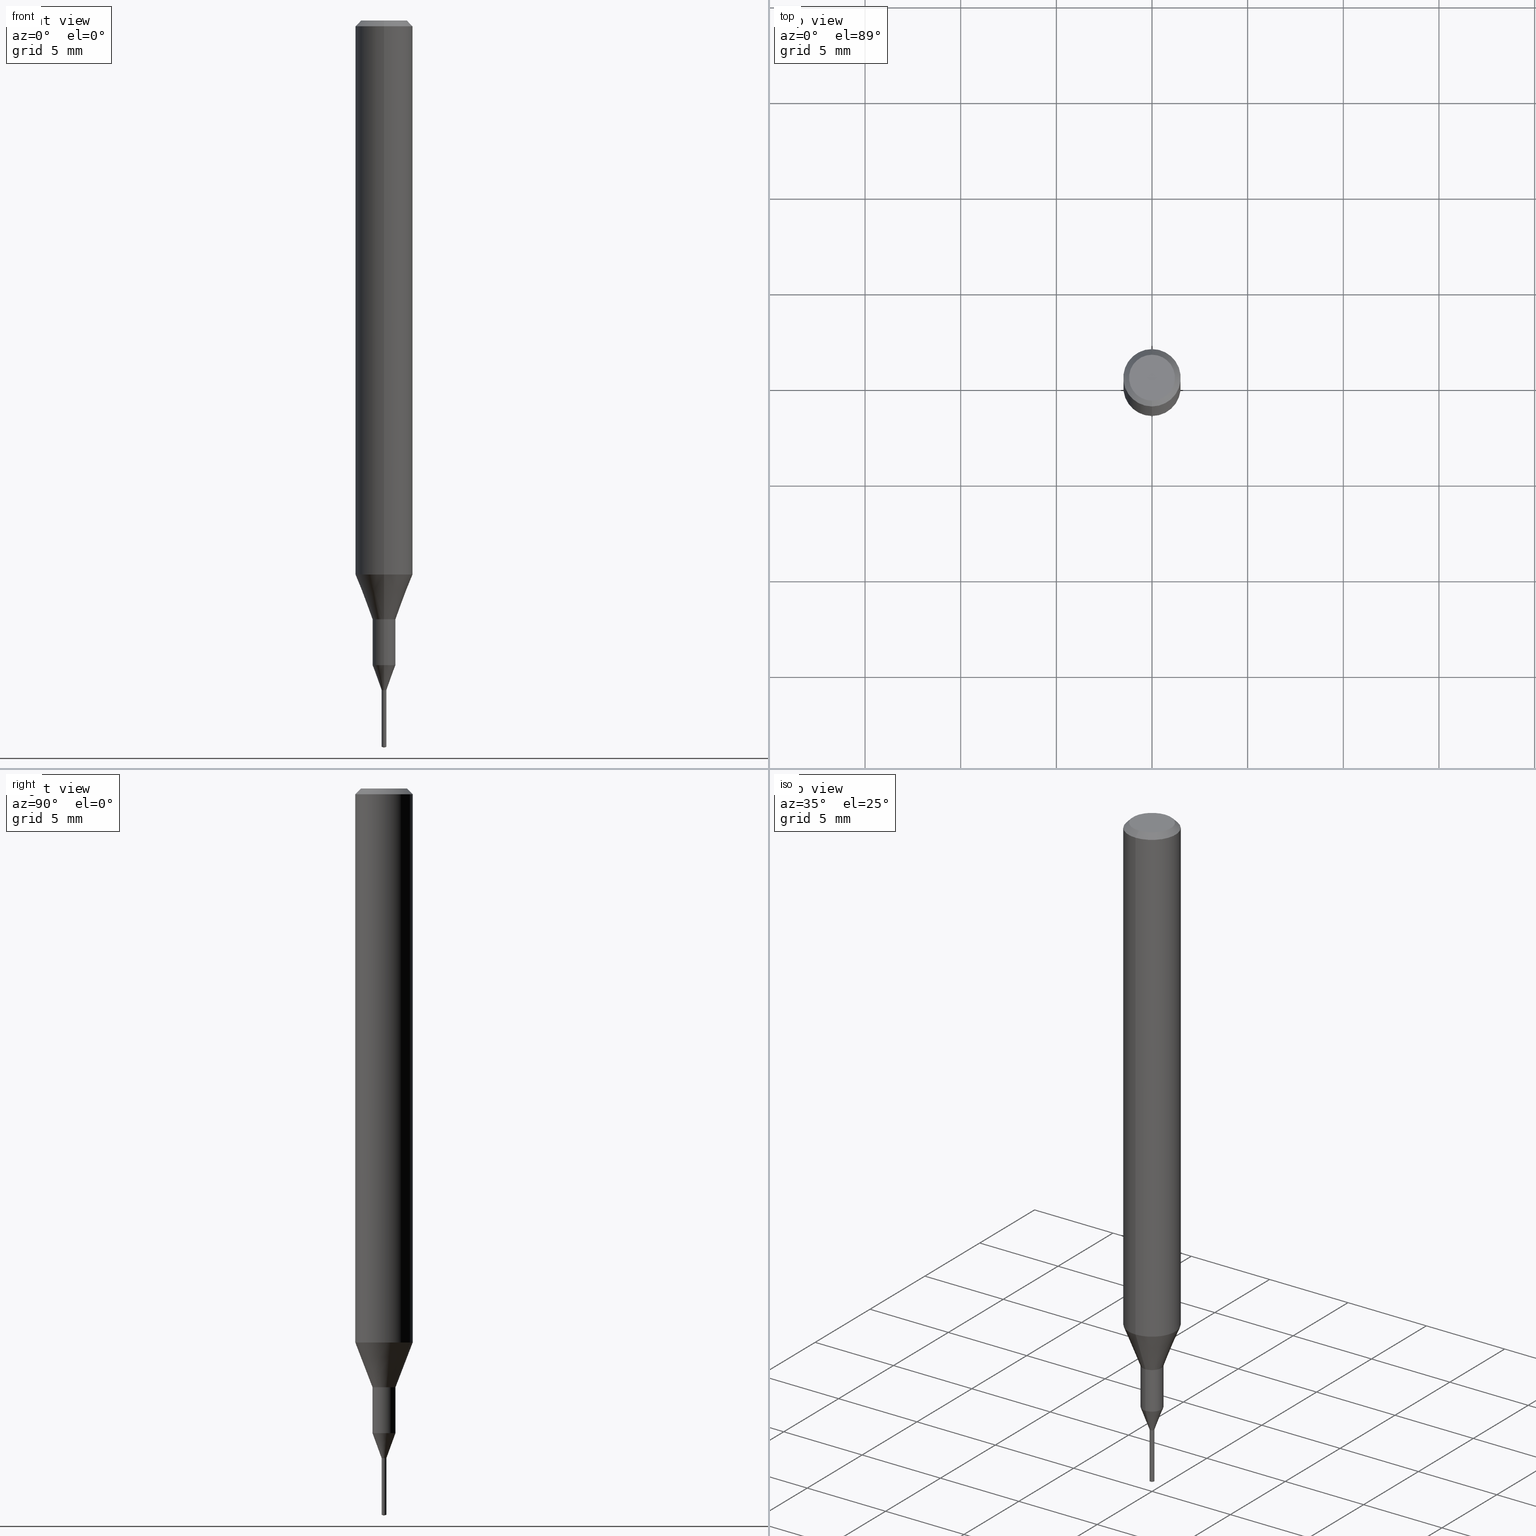
[diagram: canonical four-view strip — front | top / right | iso, engineering-drawing reading convention]
A machine part, canonical four-view strip (front | top / right | iso — engineering-drawing reading convention). The complete STEP part file that produces these views, byte-faithful:
ISO-10303-21;
HEADER;
FILE_DESCRIPTION(('no description'),'unknown implementation level');
FILE_NAME('C-UMD2025-030-Huellk.stp','  ',('CIMSOURCE GmbH'),('CADClick - KiM GmbH - www.kimweb.de'),'unknown preprocess','ACIS','unknown authorization');
FILE_SCHEMA(('automotive_design'));
ENDSEC;
DATA;
#1=MECHANICAL_DESIGN_GEOMETRIC_PRESENTATION_REPRESENTATION(' ',(#14,#15,#16,#17,#18,#19,#20,#21,#22,#23,#24,#25,#26,#27,#28,#29,#30,#31,#32,#33,#34,#35,#36,#37,#38,#39,#40,#41,#42,#43,#44,#45,#46,#47,#48,#49,#50,#51,#52,#53,#54,#55,#56,#57,#58,#59,#60,#61,#62,#63,#64,#65,#66,#67,#68,#69,#70,#71,#72,#73,#74,#75,#76,#77,#78,#79,#80,#81,#82,#83,#84,#85,#86,#87,#88,#89,#90,#91,#92),#10);
#2=PRODUCT_DEFINITION_CONTEXT('',#93,'design');
#3=APPLICATION_PROTOCOL_DEFINITION('INTERNATIONAL STANDARD','automotive_design',1994,#93);
#4=PRODUCT_CATEGORY_RELATIONSHIP('NONE','NONE',#94,#95);
#5=SHAPE_DEFINITION_REPRESENTATION(#96,#97);
#6=PRODUCT_DEFINITION_CONTEXT('',#98,'design');
#7=APPLICATION_PROTOCOL_DEFINITION('INTERNATIONAL STANDARD','automotive_design',1994,#98);
#8=PRODUCT_CATEGORY_RELATIONSHIP('NONE','NONE',#99,#100);
#9=SHAPE_DEFINITION_REPRESENTATION(#101,#102);
#10= (GEOMETRIC_REPRESENTATION_CONTEXT(3)GLOBAL_UNCERTAINTY_ASSIGNED_CONTEXT((#105))GLOBAL_UNIT_ASSIGNED_CONTEXT((#107,#108,#109))REPRESENTATION_CONTEXT('NONE','WORKSPACE'));
#14=STYLED_ITEM('',(#111),#112);
#15=STYLED_ITEM('',(#113),#114);
#16=STYLED_ITEM('',(#115),#116);
#17=STYLED_ITEM('',(#117),#118);
#18=STYLED_ITEM('',(#119),#120);
#19=STYLED_ITEM('',(#121),#122);
#20=STYLED_ITEM('',(#123),#124);
#21=STYLED_ITEM('',(#125),#126);
#22=STYLED_ITEM('',(#127),#128);
#23=STYLED_ITEM('',(#129),#130);
#24=STYLED_ITEM('',(#131),#132);
#25=STYLED_ITEM('',(#133),#134);
#26=STYLED_ITEM('',(#135),#136);
#27=STYLED_ITEM('',(#137),#138);
#28=STYLED_ITEM('',(#139),#140);
#29=STYLED_ITEM('',(#141),#142);
#30=STYLED_ITEM('',(#143),#144);
#31=STYLED_ITEM('',(#145),#146);
#32=STYLED_ITEM('',(#147),#148);
#33=STYLED_ITEM('',(#149),#150);
#34=STYLED_ITEM('',(#151),#152);
#35=STYLED_ITEM('',(#153),#154);
#36=STYLED_ITEM('',(#155),#156);
#37=STYLED_ITEM('',(#157),#158);
#38=STYLED_ITEM('',(#159),#160);
#39=STYLED_ITEM('',(#161),#162);
#40=STYLED_ITEM('',(#163),#164);
#41=STYLED_ITEM('',(#165),#166);
#42=STYLED_ITEM('',(#167),#168);
#43=STYLED_ITEM('',(#169),#170);
#44=STYLED_ITEM('',(#171),#172);
#45=STYLED_ITEM('',(#173),#174);
#46=STYLED_ITEM('',(#175),#176);
#47=STYLED_ITEM('',(#177),#178);
#48=STYLED_ITEM('',(#179),#180);
#49=STYLED_ITEM('',(#181),#182);
#50=STYLED_ITEM('',(#183),#184);
#51=STYLED_ITEM('',(#185),#186);
#52=STYLED_ITEM('',(#187),#188);
#53=STYLED_ITEM('',(#189),#190);
#54=STYLED_ITEM('',(#191),#192);
#55=STYLED_ITEM('',(#193),#194);
#56=STYLED_ITEM('',(#195),#196);
#57=STYLED_ITEM('',(#197),#198);
#58=STYLED_ITEM('',(#199),#200);
#59=STYLED_ITEM('',(#201),#202);
#60=STYLED_ITEM('',(#203),#204);
#61=STYLED_ITEM('',(#205),#206);
#62=STYLED_ITEM('',(#207),#208);
#63=STYLED_ITEM('',(#209),#210);
#64=STYLED_ITEM('',(#211),#212);
#65=STYLED_ITEM('',(#213),#214);
#66=STYLED_ITEM('',(#215),#216);
#67=STYLED_ITEM('',(#217),#218);
#68=STYLED_ITEM('',(#219),#220);
#69=STYLED_ITEM('',(#221),#222);
#70=STYLED_ITEM('',(#223),#224);
#71=STYLED_ITEM('',(#225),#226);
#72=STYLED_ITEM('',(#227),#228);
#73=STYLED_ITEM('',(#229),#230);
#74=STYLED_ITEM('',(#231),#232);
#75=STYLED_ITEM('',(#233),#234);
#76=STYLED_ITEM('',(#235),#236);
#77=STYLED_ITEM('',(#237),#238);
#78=STYLED_ITEM('',(#239),#240);
#79=STYLED_ITEM('',(#241),#242);
#80=STYLED_ITEM('',(#243),#244);
#81=STYLED_ITEM('',(#245),#246);
#82=STYLED_ITEM('',(#247),#248);
#83=STYLED_ITEM('',(#249),#250);
#84=STYLED_ITEM('',(#251),#252);
#85=STYLED_ITEM('',(#253),#254);
#86=STYLED_ITEM('',(#255),#256);
#87=STYLED_ITEM('',(#257),#258);
#88=STYLED_ITEM('',(#259),#260);
#89=STYLED_ITEM('',(#261),#262);
#90=STYLED_ITEM('',(#263),#264);
#91=STYLED_ITEM('',(#265),#266);
#92=STYLED_ITEM('',(#267),#268);
#93=APPLICATION_CONTEXT(' ');
#94=PRODUCT_CATEGORY('part','NONE');
#95=PRODUCT_RELATED_PRODUCT_CATEGORY('detail',' ',(#269));
#96=PRODUCT_DEFINITION_SHAPE('NONE','NONE',#270);
#97=ADVANCED_BREP_SHAPE_REPRESENTATION('1',(#242,#271),#10);
#98=APPLICATION_CONTEXT(' ');
#99=PRODUCT_CATEGORY('part','NONE');
#100=PRODUCT_RELATED_PRODUCT_CATEGORY('detail',' ',(#272));
#101=PRODUCT_DEFINITION_SHAPE('NONE','NONE',#273);
#102=ADVANCED_BREP_SHAPE_REPRESENTATION('2',(#150,#274),#10);
#105=UNCERTAINTY_MEASURE_WITH_UNIT(LENGTH_MEASURE(1.0E-006),#107,'','');
#107= (CONVERSION_BASED_UNIT('MILLIMETRE',#277)LENGTH_UNIT()NAMED_UNIT(#280));
#108= (NAMED_UNIT(#282)PLANE_ANGLE_UNIT()SI_UNIT($,.RADIAN.));
#109= (NAMED_UNIT(#282)SOLID_ANGLE_UNIT()SI_UNIT($,.STERADIAN.));
#111=PRESENTATION_STYLE_ASSIGNMENT((#288));
#112=VERTEX_POINT('',#289);
#113=PRESENTATION_STYLE_ASSIGNMENT((#290));
#114=EDGE_CURVE('',#212,#174,#291,.T.);
#115=PRESENTATION_STYLE_ASSIGNMENT((#292));
#116=ADVANCED_FACE('',(#293),#294,.T.);
#117=PRESENTATION_STYLE_ASSIGNMENT((#295));
#118=ADVANCED_FACE('',(#296),#297,.T.);
#119=PRESENTATION_STYLE_ASSIGNMENT((#298));
#120=EDGE_CURVE('',#252,#190,#299,.T.);
#121=PRESENTATION_STYLE_ASSIGNMENT((#300));
#122=ADVANCED_FACE('',(#301),#302,.T.);
#123=PRESENTATION_STYLE_ASSIGNMENT((#303));
#124=ADVANCED_FACE('',(#304),#305,.T.);
#125=PRESENTATION_STYLE_ASSIGNMENT((#306));
#126=EDGE_CURVE('',#248,#152,#307,.T.);
#127=PRESENTATION_STYLE_ASSIGNMENT((#308));
#128=EDGE_CURVE('',#192,#202,#309,.T.);
#129=PRESENTATION_STYLE_ASSIGNMENT((#310));
#130=EDGE_CURVE('',#190,#252,#311,.T.);
#131=PRESENTATION_STYLE_ASSIGNMENT((#312));
#132=EDGE_CURVE('',#160,#174,#313,.T.);
#133=PRESENTATION_STYLE_ASSIGNMENT((#314));
#134=EDGE_CURVE('',#158,#152,#315,.T.);
#135=PRESENTATION_STYLE_ASSIGNMENT((#316));
#136=VERTEX_POINT('',#317);
#137=PRESENTATION_STYLE_ASSIGNMENT((#318));
#138=EDGE_CURVE('',#160,#248,#319,.T.);
#139=PRESENTATION_STYLE_ASSIGNMENT((#320));
#140=EDGE_CURVE('',#164,#112,#321,.T.);
#141=PRESENTATION_STYLE_ASSIGNMENT((#322));
#142=EDGE_CURVE('',#252,#202,#323,.T.);
#143=PRESENTATION_STYLE_ASSIGNMENT((#324));
#144=EDGE_CURVE('',#212,#248,#325,.T.);
#145=PRESENTATION_STYLE_ASSIGNMENT((#326));
#146=EDGE_CURVE('',#202,#192,#327,.T.);
#147=PRESENTATION_STYLE_ASSIGNMENT((#328));
#148=VERTEX_POINT('',#329);
#149=PRESENTATION_STYLE_ASSIGNMENT((#330));
#150=MANIFOLD_SOLID_BREP('2',#331);
#151=PRESENTATION_STYLE_ASSIGNMENT((#332));
#152=VERTEX_POINT('',#333);
#153=PRESENTATION_STYLE_ASSIGNMENT((#334));
#154=EDGE_CURVE('',#186,#176,#335,.T.);
#155=PRESENTATION_STYLE_ASSIGNMENT((#336));
#156=EDGE_CURVE('',#174,#160,#337,.T.);
#157=PRESENTATION_STYLE_ASSIGNMENT((#338));
#158=VERTEX_POINT('',#339);
#159=PRESENTATION_STYLE_ASSIGNMENT((#340));
#160=VERTEX_POINT('',#341);
#161=PRESENTATION_STYLE_ASSIGNMENT((#342));
#162=ADVANCED_FACE('',(#343),#344,.T.);
#163=PRESENTATION_STYLE_ASSIGNMENT((#345));
#164=VERTEX_POINT('',#346);
#165=PRESENTATION_STYLE_ASSIGNMENT((#347));
#166=EDGE_CURVE('',#210,#214,#348,.T.);
#167=PRESENTATION_STYLE_ASSIGNMENT((#349));
#168=ADVANCED_FACE('',(#350),#351,.T.);
#169=PRESENTATION_STYLE_ASSIGNMENT((#352));
#170=EDGE_CURVE('',#136,#176,#353,.T.);
#171=PRESENTATION_STYLE_ASSIGNMENT((#354));
#172=ADVANCED_FACE('',(#355),#356,.T.);
#173=PRESENTATION_STYLE_ASSIGNMENT((#357));
#174=VERTEX_POINT('',#358);
#175=PRESENTATION_STYLE_ASSIGNMENT((#359));
#176=VERTEX_POINT('',#360);
#177=PRESENTATION_STYLE_ASSIGNMENT((#361));
#178=ADVANCED_FACE('',(#362),#363,.T.);
#179=PRESENTATION_STYLE_ASSIGNMENT((#364));
#180=EDGE_CURVE('',#246,#192,#365,.T.);
#181=PRESENTATION_STYLE_ASSIGNMENT((#366));
#182=EDGE_CURVE('',#234,#246,#367,.T.);
#183=PRESENTATION_STYLE_ASSIGNMENT((#368));
#184=ADVANCED_FACE('',(#369),#370,.T.);
#185=PRESENTATION_STYLE_ASSIGNMENT((#371));
#186=VERTEX_POINT('',#372);
#187=PRESENTATION_STYLE_ASSIGNMENT((#373));
#188=EDGE_CURVE('',#148,#186,#374,.T.);
#189=PRESENTATION_STYLE_ASSIGNMENT((#375));
#190=VERTEX_POINT('',#376);
#191=PRESENTATION_STYLE_ASSIGNMENT((#377));
#192=VERTEX_POINT('',#378);
#193=PRESENTATION_STYLE_ASSIGNMENT((#379));
#194=EDGE_CURVE('',#158,#212,#380,.T.);
#195=PRESENTATION_STYLE_ASSIGNMENT((#381));
#196=ADVANCED_FACE('',(#382),#383,.T.);
#197=PRESENTATION_STYLE_ASSIGNMENT((#384));
#198=EDGE_CURVE('',#246,#234,#385,.T.);
#199=PRESENTATION_STYLE_ASSIGNMENT((#386));
#200=EDGE_CURVE('',#192,#190,#387,.T.);
#201=PRESENTATION_STYLE_ASSIGNMENT((#388));
#202=VERTEX_POINT('',#389);
#203=PRESENTATION_STYLE_ASSIGNMENT((#390));
#204=EDGE_CURVE('',#214,#136,#391,.T.);
#205=PRESENTATION_STYLE_ASSIGNMENT((#392));
#206=EDGE_CURVE('',#112,#246,#393,.T.);
#207=PRESENTATION_STYLE_ASSIGNMENT((#394));
#208=EDGE_CURVE('',#186,#148,#395,.T.);
#209=PRESENTATION_STYLE_ASSIGNMENT((#396));
#210=VERTEX_POINT('',#397);
#211=PRESENTATION_STYLE_ASSIGNMENT((#398));
#212=VERTEX_POINT('',#399);
#213=PRESENTATION_STYLE_ASSIGNMENT((#400));
#214=VERTEX_POINT('',#401);
#215=PRESENTATION_STYLE_ASSIGNMENT((#402));
#216=EDGE_CURVE('',#234,#164,#403,.T.);
#217=PRESENTATION_STYLE_ASSIGNMENT((#404));
#218=ADVANCED_FACE('',(#405),#406,.T.);
#219=PRESENTATION_STYLE_ASSIGNMENT((#407));
#220=EDGE_CURVE('',#152,#158,#408,.T.);
#221=PRESENTATION_STYLE_ASSIGNMENT((#409));
#222=ADVANCED_FACE('',(#410),#411,.T.);
#223=PRESENTATION_STYLE_ASSIGNMENT((#412));
#224=EDGE_CURVE('',#176,#210,#413,.T.);
#225=PRESENTATION_STYLE_ASSIGNMENT((#414));
#226=EDGE_CURVE('',#176,#136,#415,.T.);
#227=PRESENTATION_STYLE_ASSIGNMENT((#416));
#228=ADVANCED_FACE('',(#417,#418),#419,.T.);
#229=PRESENTATION_STYLE_ASSIGNMENT((#420));
#230=VERTEX_POINT('',#421);
#231=PRESENTATION_STYLE_ASSIGNMENT((#422));
#232=EDGE_CURVE('',#136,#148,#423,.T.);
#233=PRESENTATION_STYLE_ASSIGNMENT((#424));
#234=VERTEX_POINT('',#425);
#235=PRESENTATION_STYLE_ASSIGNMENT((#426));
#236=ADVANCED_FACE('',(#427),#428,.T.);
#237=PRESENTATION_STYLE_ASSIGNMENT((#429));
#238=ADVANCED_FACE('',(#430),#431,.T.);
#239=PRESENTATION_STYLE_ASSIGNMENT((#432));
#240=EDGE_CURVE('',#202,#234,#433,.T.);
#241=PRESENTATION_STYLE_ASSIGNMENT((#434));
#242=MANIFOLD_SOLID_BREP('1',#435);
#243=PRESENTATION_STYLE_ASSIGNMENT((#436));
#244=EDGE_CURVE('',#214,#210,#437,.T.);
#245=PRESENTATION_STYLE_ASSIGNMENT((#438));
#246=VERTEX_POINT('',#439);
#247=PRESENTATION_STYLE_ASSIGNMENT((#440));
#248=VERTEX_POINT('',#441);
#249=PRESENTATION_STYLE_ASSIGNMENT((#442));
#250=ADVANCED_FACE('',(#443),#444,.T.);
#251=PRESENTATION_STYLE_ASSIGNMENT((#445));
#252=VERTEX_POINT('',#446);
#253=PRESENTATION_STYLE_ASSIGNMENT((#447));
#254=EDGE_CURVE('',#112,#164,#448,.T.);
#255=PRESENTATION_STYLE_ASSIGNMENT((#449));
#256=EDGE_CURVE('',#230,#160,#450,.T.);
#257=PRESENTATION_STYLE_ASSIGNMENT((#451));
#258=ADVANCED_FACE('',(#452),#453,.T.);
#259=PRESENTATION_STYLE_ASSIGNMENT((#454));
#260=ADVANCED_FACE('',(#455),#456,.T.);
#261=PRESENTATION_STYLE_ASSIGNMENT((#457));
#262=ADVANCED_FACE('',(#458),#459,.T.);
#263=PRESENTATION_STYLE_ASSIGNMENT((#460));
#264=ADVANCED_FACE('',(#461),#462,.T.);
#265=PRESENTATION_STYLE_ASSIGNMENT((#463));
#266=EDGE_CURVE('',#248,#212,#464,.T.);
#267=PRESENTATION_STYLE_ASSIGNMENT((#465));
#268=EDGE_CURVE('',#174,#230,#466,.T.);
#269=PRODUCT('1','1','PART-1-DESC',(#467));
#270=PRODUCT_DEFINITION('NONE','NONE',#468,#2);
#271=AXIS2_PLACEMENT_3D('',#469,#470,#471);
#272=PRODUCT('2','2','PART-2-DESC',(#472));
#273=PRODUCT_DEFINITION('NONE','NONE',#473,#6);
#274=AXIS2_PLACEMENT_3D('',#474,#475,#476);
#277=LENGTH_MEASURE_WITH_UNIT(LENGTH_MEASURE(1.0),#477);
#280=DIMENSIONAL_EXPONENTS(1.0,0.0,0.0,0.0,0.0,0.0,0.0);
#282=DIMENSIONAL_EXPONENTS(0.0,0.0,0.0,0.0,0.0,0.0,0.0);
#288=POINT_STYLE(' ',#478,POSITIVE_LENGTH_MEASURE(1.0E-006),#479);
#289=CARTESIAN_POINT('',(0.0,1.2,0.0));
#290=CURVE_STYLE('',#480,POSITIVE_LENGTH_MEASURE(1.0E-006),#481);
#291=LINE('',#482,#483);
#292=SURFACE_STYLE_USAGE(.BOTH.,#484);
#293=FACE_OUTER_BOUND('',#485,.T.);
#294=CONICAL_SURFACE('',#486,1.05,0.366459241971866);
#295=SURFACE_STYLE_USAGE(.BOTH.,#487);
#296=FACE_OUTER_BOUND('',#488,.T.);
#297=CONICAL_SURFACE('',#489,1.35,0.785398163397447);
#298=CURVE_STYLE('',#490,POSITIVE_LENGTH_MEASURE(1.0E-006),#491);
#299=CIRCLE('',#492,0.6);
#300=SURFACE_STYLE_USAGE(.BOTH.,#493);
#301=FACE_OUTER_BOUND('',#494,.T.);
#302=CONICAL_SURFACE('',#495,0.362493197318008,0.34904476886486);
#303=SURFACE_STYLE_USAGE(.BOTH.,#496);
#304=FACE_OUTER_BOUND('',#497,.T.);
#305=CONICAL_SURFACE('',#498,0.0625,1.30899693193389);
#306=CURVE_STYLE('',#499,POSITIVE_LENGTH_MEASURE(1.0E-006),#500);
#307=LINE('',#501,#502);
#308=CURVE_STYLE('',#503,POSITIVE_LENGTH_MEASURE(1.0E-006),#504);
#309=CIRCLE('',#505,1.5);
#310=CURVE_STYLE('',#506,POSITIVE_LENGTH_MEASURE(1.0E-006),#507);
#311=CIRCLE('',#508,0.6);
#312=CURVE_STYLE('',#509,POSITIVE_LENGTH_MEASURE(1.0E-006),#510);
#313=CIRCLE('',#511,0.125);
#314=CURVE_STYLE('',#512,POSITIVE_LENGTH_MEASURE(1.0E-006),#513);
#315=CIRCLE('',#514,0.126036398467433);
#316=POINT_STYLE(' ',#515,POSITIVE_LENGTH_MEASURE(1.0E-006),#516);
#317=CARTESIAN_POINT('',(0.0,0.59995,-33.695));
#318=CURVE_STYLE('',#517,POSITIVE_LENGTH_MEASURE(1.0E-006),#518);
#319=LINE('',#519,#520);
#320=CURVE_STYLE('',#521,POSITIVE_LENGTH_MEASURE(1.0E-006),#522);
#321=CIRCLE('',#523,1.2);
#322=CURVE_STYLE('',#524,POSITIVE_LENGTH_MEASURE(1.0E-006),#525);
#323=LINE('',#526,#527);
#324=CURVE_STYLE('',#528,POSITIVE_LENGTH_MEASURE(1.0E-006),#529);
#325=CIRCLE('',#530,0.125);
#326=CURVE_STYLE('',#531,POSITIVE_LENGTH_MEASURE(1.0E-006),#532);
#327=CIRCLE('',#533,1.5);
#328=POINT_STYLE(' ',#534,POSITIVE_LENGTH_MEASURE(1.0E-006),#535);
#329=CARTESIAN_POINT('',(0.0,0.125036394636015,-34.9999));
#330=SURFACE_STYLE_USAGE(.BOTH.,#536);
#331=CLOSED_SHELL('',(#124,#172,#262,#218,#184,#238,#260));
#332=POINT_STYLE(' ',#537,POSITIVE_LENGTH_MEASURE(1.0E-006),#538);
#333=CARTESIAN_POINT('',(0.126036398467433,1.54344974376107E-017,-34.9999));
#334=CURVE_STYLE('',#539,POSITIVE_LENGTH_MEASURE(1.0E-006),#540);
#335=LINE('',#541,#542);
#336=CURVE_STYLE('',#543,POSITIVE_LENGTH_MEASURE(1.0E-006),#544);
#337=CIRCLE('',#545,0.125);
#338=POINT_STYLE(' ',#546,POSITIVE_LENGTH_MEASURE(1.0E-006),#547);
#339=CARTESIAN_POINT('',(-0.126036398467433,0.0,-34.9999));
#340=POINT_STYLE(' ',#548,POSITIVE_LENGTH_MEASURE(1.0E-006),#549);
#341=CARTESIAN_POINT('',(0.125,1.53075794227797E-017,-37.96650635));
#342=SURFACE_STYLE_USAGE(.BOTH.,#550);
#343=FACE_OUTER_BOUND('',#551,.T.);
#344=CYLINDRICAL_SURFACE('',#552,0.59995);
#345=POINT_STYLE(' ',#553,POSITIVE_LENGTH_MEASURE(1.0E-006),#554);
#346=CARTESIAN_POINT('',(1.46952762458685E-016,-1.2,0.0));
#347=CURVE_STYLE('',#555,POSITIVE_LENGTH_MEASURE(1.0E-006),#556);
#348=CIRCLE('',#557,0.59995);
#349=SURFACE_STYLE_USAGE(.BOTH.,#558);
#350=FACE_OUTER_BOUND('',#559,.T.);
#351=CYLINDRICAL_SURFACE('',#560,1.5);
#352=CURVE_STYLE('',#561,POSITIVE_LENGTH_MEASURE(1.0E-006),#562);
#353=CIRCLE('',#563,0.59995);
#354=SURFACE_STYLE_USAGE(.BOTH.,#564);
#355=FACE_OUTER_BOUND('',#565,.T.);
#356=CYLINDRICAL_SURFACE('',#566,0.125);
#357=POINT_STYLE(' ',#567,POSITIVE_LENGTH_MEASURE(1.0E-006),#568);
#358=CARTESIAN_POINT('',(-0.125,0.0,-37.96650635));
#359=POINT_STYLE(' ',#569,POSITIVE_LENGTH_MEASURE(1.0E-006),#570);
#360=CARTESIAN_POINT('',(7.34702581975735E-017,-0.59995,-33.695));
#361=SURFACE_STYLE_USAGE(.BOTH.,#571);
#362=FACE_OUTER_BOUND('',#572,.T.);
#363=PLANE('',#573);
#364=CURVE_STYLE('',#574,POSITIVE_LENGTH_MEASURE(1.0E-006),#575);
#365=LINE('',#576,#577);
#366=CURVE_STYLE('',#578,POSITIVE_LENGTH_MEASURE(1.0E-006),#579);
#367=CIRCLE('',#580,1.5);
#368=SURFACE_STYLE_USAGE(.BOTH.,#581);
#369=FACE_OUTER_BOUND('',#582,.T.);
#370=CONICAL_SURFACE('',#583,0.125518199233716,1.47460611218056);
#371=POINT_STYLE(' ',#584,POSITIVE_LENGTH_MEASURE(1.0E-006),#585);
#372=CARTESIAN_POINT('',(1.53120363330306E-017,-0.125036394636015,-34.9999));
#373=CURVE_STYLE('',#586,POSITIVE_LENGTH_MEASURE(1.0E-006),#587);
#374=CIRCLE('',#588,0.125036394636015);
#375=POINT_STYLE(' ',#589,POSITIVE_LENGTH_MEASURE(1.0E-006),#590);
#376=CARTESIAN_POINT('',(0.0,0.6,-31.3));
#377=POINT_STYLE(' ',#591,POSITIVE_LENGTH_MEASURE(1.0E-006),#592);
#378=CARTESIAN_POINT('',(0.0,1.5,-28.955));
#379=CURVE_STYLE('',#593,POSITIVE_LENGTH_MEASURE(1.0E-006),#594);
#380=LINE('',#595,#596);
#381=SURFACE_STYLE_USAGE(.BOTH.,#597);
#382=FACE_OUTER_BOUND('',#598,.T.);
#383=CYLINDRICAL_SURFACE('',#599,0.59995);
#384=CURVE_STYLE('',#600,POSITIVE_LENGTH_MEASURE(1.0E-006),#601);
#385=CIRCLE('',#602,1.5);
#386=CURVE_STYLE('',#603,POSITIVE_LENGTH_MEASURE(1.0E-006),#604);
#387=LINE('',#605,#606);
#388=POINT_STYLE(' ',#607,POSITIVE_LENGTH_MEASURE(1.0E-006),#608);
#389=CARTESIAN_POINT('',(1.83690953073357E-016,-1.5,-28.955));
#390=CURVE_STYLE('',#609,POSITIVE_LENGTH_MEASURE(1.0E-006),#610);
#391=LINE('',#611,#612);
#392=CURVE_STYLE('',#613,POSITIVE_LENGTH_MEASURE(1.0E-006),#614);
#393=LINE('',#615,#616);
#394=CURVE_STYLE('',#617,POSITIVE_LENGTH_MEASURE(1.0E-006),#618);
#395=CIRCLE('',#619,0.125036394636015);
#396=POINT_STYLE(' ',#620,POSITIVE_LENGTH_MEASURE(1.0E-006),#621);
#397=CARTESIAN_POINT('',(7.34702581975735E-017,-0.59995,-31.3));
#398=POINT_STYLE(' ',#622,POSITIVE_LENGTH_MEASURE(1.0E-006),#623);
#399=CARTESIAN_POINT('',(-0.125,0.0,-35.0));
#400=POINT_STYLE(' ',#624,POSITIVE_LENGTH_MEASURE(1.0E-006),#625);
#401=CARTESIAN_POINT('',(0.0,0.59995,-31.3));
#402=CURVE_STYLE('',#626,POSITIVE_LENGTH_MEASURE(1.0E-006),#627);
#403=LINE('',#628,#629);
#404=SURFACE_STYLE_USAGE(.BOTH.,#630);
#405=FACE_OUTER_BOUND('',#631,.T.);
#406=PLANE('',#632);
#407=CURVE_STYLE('',#633,POSITIVE_LENGTH_MEASURE(1.0E-006),#634);
#408=CIRCLE('',#635,0.126036398467433);
#409=SURFACE_STYLE_USAGE(.BOTH.,#636);
#410=FACE_OUTER_BOUND('',#637,.T.);
#411=CONICAL_SURFACE('',#638,0.362493197318008,0.34904476886486);
#412=CURVE_STYLE('',#639,POSITIVE_LENGTH_MEASURE(1.0E-006),#640);
#413=LINE('',#641,#642);
#414=CURVE_STYLE('',#643,POSITIVE_LENGTH_MEASURE(1.0E-006),#644);
#415=CIRCLE('',#645,0.59995);
#416=SURFACE_STYLE_USAGE(.BOTH.,#646);
#417=FACE_BOUND('',#647,.T.);
#418=FACE_OUTER_BOUND('',#648,.T.);
#419=PLANE('',#649);
#420=POINT_STYLE(' ',#650,POSITIVE_LENGTH_MEASURE(1.0E-006),#651);
#421=CARTESIAN_POINT('',(0.0,0.0,-38.0));
#422=CURVE_STYLE('',#652,POSITIVE_LENGTH_MEASURE(1.0E-006),#653);
#423=LINE('',#654,#655);
#424=POINT_STYLE(' ',#656,POSITIVE_LENGTH_MEASURE(1.0E-006),#657);
#425=CARTESIAN_POINT('',(1.83690953073357E-016,-1.5,-0.300000000000001));
#426=SURFACE_STYLE_USAGE(.BOTH.,#658);
#427=FACE_OUTER_BOUND('',#659,.T.);
#428=PLANE('',#660);
#429=SURFACE_STYLE_USAGE(.BOTH.,#661);
#430=FACE_OUTER_BOUND('',#662,.T.);
#431=CYLINDRICAL_SURFACE('',#663,0.125);
#432=CURVE_STYLE('',#664,POSITIVE_LENGTH_MEASURE(1.0E-006),#665);
#433=LINE('',#666,#667);
#434=SURFACE_STYLE_USAGE(.BOTH.,#668);
#435=CLOSED_SHELL('',(#222,#196,#250,#168,#264,#178,#118,#258,#116,#228,#162,#122,#236));
#436=CURVE_STYLE('',#669,POSITIVE_LENGTH_MEASURE(1.0E-006),#670);
#437=CIRCLE('',#671,0.59995);
#438=POINT_STYLE(' ',#672,POSITIVE_LENGTH_MEASURE(1.0E-006),#673);
#439=CARTESIAN_POINT('',(0.0,1.5,-0.300000000000001));
#440=POINT_STYLE(' ',#674,POSITIVE_LENGTH_MEASURE(1.0E-006),#675);
#441=CARTESIAN_POINT('',(0.125,1.53075794227797E-017,-35.0));
#442=SURFACE_STYLE_USAGE(.BOTH.,#676);
#443=FACE_OUTER_BOUND('',#677,.T.);
#444=CONICAL_SURFACE('',#678,1.05,0.366459241971866);
#445=POINT_STYLE(' ',#679,POSITIVE_LENGTH_MEASURE(1.0E-006),#680);
#446=CARTESIAN_POINT('',(7.34763812293426E-017,-0.6,-31.3));
#447=CURVE_STYLE('',#681,POSITIVE_LENGTH_MEASURE(1.0E-006),#682);
#448=CIRCLE('',#683,1.2);
#449=CURVE_STYLE('',#684,POSITIVE_LENGTH_MEASURE(1.0E-006),#685);
#450=LINE('',#686,#687);
#451=SURFACE_STYLE_USAGE(.BOTH.,#688);
#452=FACE_OUTER_BOUND('',#689,.T.);
#453=CYLINDRICAL_SURFACE('',#690,1.5);
#454=SURFACE_STYLE_USAGE(.BOTH.,#691);
#455=FACE_OUTER_BOUND('',#692,.T.);
#456=CONICAL_SURFACE('',#693,0.0625,1.30899693193389);
#457=SURFACE_STYLE_USAGE(.BOTH.,#694);
#458=FACE_OUTER_BOUND('',#695,.T.);
#459=CONICAL_SURFACE('',#696,0.125518199233716,1.47460611218056);
#460=SURFACE_STYLE_USAGE(.BOTH.,#697);
#461=FACE_OUTER_BOUND('',#698,.T.);
#462=CONICAL_SURFACE('',#699,1.35,0.785398163397447);
#463=CURVE_STYLE('',#700,POSITIVE_LENGTH_MEASURE(1.0E-006),#701);
#464=CIRCLE('',#702,0.125);
#465=CURVE_STYLE('',#703,POSITIVE_LENGTH_MEASURE(1.0E-006),#704);
#466=LINE('',#705,#706);
#467=PRODUCT_CONTEXT('',#93,'mechanical');
#468=PRODUCT_DEFINITION_FORMATION_WITH_SPECIFIED_SOURCE(' ','NONE',#269,.NOT_KNOWN.);
#469=CARTESIAN_POINT('',(0.0,0.0,0.0));
#470=DIRECTION('',(0.0,0.0,1.0));
#471=DIRECTION('',(1.0,0.0,0.0));
#472=PRODUCT_CONTEXT('',#98,'mechanical');
#473=PRODUCT_DEFINITION_FORMATION_WITH_SPECIFIED_SOURCE(' ','NONE',#272,.NOT_KNOWN.);
#474=CARTESIAN_POINT('',(0.0,0.0,0.0));
#475=DIRECTION('',(0.0,0.0,1.0));
#476=DIRECTION('',(1.0,0.0,0.0));
#477= (NAMED_UNIT(#280)LENGTH_UNIT()SI_UNIT(.MILLI.,.METRE.));
#478=PRE_DEFINED_MARKER('');
#479=COLOUR_RGB('',0.498039215803146,0.498039215803146,0.498039215803146);
#480=DRAUGHTING_PRE_DEFINED_CURVE_FONT('continuous');
#481=COLOUR_RGB('',0.800000011920929,0.800000011920929,0.800000011920929);
#482=CARTESIAN_POINT('',(-0.125,-1.53075794227797E-017,-36.483253175));
#483=VECTOR('',#708,1.0);
#484=SURFACE_SIDE_STYLE('',(#709));
#485=EDGE_LOOP('',(#710,#711,#712,#713));
#486=AXIS2_PLACEMENT_3D('',#714,#715,#716);
#487=SURFACE_SIDE_STYLE('',(#717));
#488=EDGE_LOOP('',(#718,#719,#720,#721));
#489=AXIS2_PLACEMENT_3D('',#722,#723,#724);
#490=DRAUGHTING_PRE_DEFINED_CURVE_FONT('continuous');
#491=COLOUR_RGB('',0.498039215803146,0.498039215803146,0.498039215803146);
#492=AXIS2_PLACEMENT_3D('',#725,#726,#727);
#493=SURFACE_SIDE_STYLE('',(#728));
#494=EDGE_LOOP('',(#729,#730,#731,#732));
#495=AXIS2_PLACEMENT_3D('',#733,#734,#735);
#496=SURFACE_SIDE_STYLE('',(#736));
#497=EDGE_LOOP('',(#737,#738,#739));
#498=AXIS2_PLACEMENT_3D('',#740,#741,#742);
#499=DRAUGHTING_PRE_DEFINED_CURVE_FONT('continuous');
#500=COLOUR_RGB('',0.800000011920929,0.800000011920929,0.800000011920929);
#501=CARTESIAN_POINT('',(0.125518199233716,1.53710384301952E-017,-34.99995));
#502=VECTOR('',#743,1.0);
#503=DRAUGHTING_PRE_DEFINED_CURVE_FONT('continuous');
#504=COLOUR_RGB('',0.498039215803146,0.498039215803146,0.498039215803146);
#505=AXIS2_PLACEMENT_3D('',#744,#745,#746);
#506=DRAUGHTING_PRE_DEFINED_CURVE_FONT('continuous');
#507=COLOUR_RGB('',0.498039215803146,0.498039215803146,0.498039215803146);
#508=AXIS2_PLACEMENT_3D('',#747,#748,#749);
#509=DRAUGHTING_PRE_DEFINED_CURVE_FONT('continuous');
#510=COLOUR_RGB('',0.800000011920929,0.800000011920929,0.800000011920929);
#511=AXIS2_PLACEMENT_3D('',#750,#751,#752);
#512=DRAUGHTING_PRE_DEFINED_CURVE_FONT('continuous');
#513=COLOUR_RGB('',0.800000011920929,0.800000011920929,0.800000011920929);
#514=AXIS2_PLACEMENT_3D('',#753,#754,#755);
#515=PRE_DEFINED_MARKER('');
#516=COLOUR_RGB('',0.498039215803146,0.498039215803146,0.498039215803146);
#517=DRAUGHTING_PRE_DEFINED_CURVE_FONT('continuous');
#518=COLOUR_RGB('',0.800000011920929,0.800000011920929,0.800000011920929);
#519=CARTESIAN_POINT('',(0.125,1.53075794227797E-017,-36.483253175));
#520=VECTOR('',#756,1.0);
#521=DRAUGHTING_PRE_DEFINED_CURVE_FONT('continuous');
#522=COLOUR_RGB('',0.498039215803146,0.498039215803146,0.498039215803146);
#523=AXIS2_PLACEMENT_3D('',#757,#758,#759);
#524=DRAUGHTING_PRE_DEFINED_CURVE_FONT('continuous');
#525=COLOUR_RGB('',0.498039215803146,0.498039215803146,0.498039215803146);
#526=CARTESIAN_POINT('',(1.2858366715135E-016,-1.05,-30.1275));
#527=VECTOR('',#760,1.0);
#528=DRAUGHTING_PRE_DEFINED_CURVE_FONT('continuous');
#529=COLOUR_RGB('',0.800000011920929,0.800000011920929,0.800000011920929);
#530=AXIS2_PLACEMENT_3D('',#761,#762,#763);
#531=DRAUGHTING_PRE_DEFINED_CURVE_FONT('continuous');
#532=COLOUR_RGB('',0.498039215803146,0.498039215803146,0.498039215803146);
#533=AXIS2_PLACEMENT_3D('',#764,#765,#766);
#534=PRE_DEFINED_MARKER('');
#535=COLOUR_RGB('',0.498039215803146,0.498039215803146,0.498039215803146);
#536=SURFACE_SIDE_STYLE('',(#767));
#537=PRE_DEFINED_MARKER('');
#538=COLOUR_RGB('',0.800000011920929,0.800000011920929,0.800000011920929);
#539=DRAUGHTING_PRE_DEFINED_CURVE_FONT('continuous');
#540=COLOUR_RGB('',0.498039215803146,0.498039215803146,0.498039215803146);
#541=CARTESIAN_POINT('',(4.43911472653021E-017,-0.362493197318008,-34.34745));
#542=VECTOR('',#768,1.0);
#543=DRAUGHTING_PRE_DEFINED_CURVE_FONT('continuous');
#544=COLOUR_RGB('',0.800000011920929,0.800000011920929,0.800000011920929);
#545=AXIS2_PLACEMENT_3D('',#769,#770,#771);
#546=PRE_DEFINED_MARKER('');
#547=COLOUR_RGB('',0.800000011920929,0.800000011920929,0.800000011920929);
#548=PRE_DEFINED_MARKER('');
#549=COLOUR_RGB('',0.800000011920929,0.800000011920929,0.800000011920929);
#550=SURFACE_SIDE_STYLE('',(#772));
#551=EDGE_LOOP('',(#773,#774,#775,#776));
#552=AXIS2_PLACEMENT_3D('',#777,#778,#779);
#553=PRE_DEFINED_MARKER('');
#554=COLOUR_RGB('',0.498039215803146,0.498039215803146,0.498039215803146);
#555=DRAUGHTING_PRE_DEFINED_CURVE_FONT('continuous');
#556=COLOUR_RGB('',0.498039215803146,0.498039215803146,0.498039215803146);
#557=AXIS2_PLACEMENT_3D('',#780,#781,#782);
#558=SURFACE_SIDE_STYLE('',(#783));
#559=EDGE_LOOP('',(#784,#785,#786,#787));
#560=AXIS2_PLACEMENT_3D('',#788,#789,#790);
#561=DRAUGHTING_PRE_DEFINED_CURVE_FONT('continuous');
#562=COLOUR_RGB('',0.498039215803146,0.498039215803146,0.498039215803146);
#563=AXIS2_PLACEMENT_3D('',#791,#792,#793);
#564=SURFACE_SIDE_STYLE('',(#794));
#565=EDGE_LOOP('',(#795,#796,#797,#798));
#566=AXIS2_PLACEMENT_3D('',#799,#800,#801);
#567=PRE_DEFINED_MARKER('');
#568=COLOUR_RGB('',0.800000011920929,0.800000011920929,0.800000011920929);
#569=PRE_DEFINED_MARKER('');
#570=COLOUR_RGB('',0.498039215803146,0.498039215803146,0.498039215803146);
#571=SURFACE_SIDE_STYLE('',(#802));
#572=EDGE_LOOP('',(#803,#804));
#573=AXIS2_PLACEMENT_3D('',#805,#806,#807);
#574=DRAUGHTING_PRE_DEFINED_CURVE_FONT('continuous');
#575=COLOUR_RGB('',0.498039215803146,0.498039215803146,0.498039215803146);
#576=CARTESIAN_POINT('',(-1.83690953073357E-016,1.5,-14.6275));
#577=VECTOR('',#808,1.0);
#578=DRAUGHTING_PRE_DEFINED_CURVE_FONT('continuous');
#579=COLOUR_RGB('',0.498039215803146,0.498039215803146,0.498039215803146);
#580=AXIS2_PLACEMENT_3D('',#809,#810,#811);
#581=SURFACE_SIDE_STYLE('',(#812));
#582=EDGE_LOOP('',(#813,#814,#815,#816));
#583=AXIS2_PLACEMENT_3D('',#817,#818,#819);
#584=PRE_DEFINED_MARKER('');
#585=COLOUR_RGB('',0.498039215803146,0.498039215803146,0.498039215803146);
#586=DRAUGHTING_PRE_DEFINED_CURVE_FONT('continuous');
#587=COLOUR_RGB('',0.498039215803146,0.498039215803146,0.498039215803146);
#588=AXIS2_PLACEMENT_3D('',#820,#821,#822);
#589=PRE_DEFINED_MARKER('');
#590=COLOUR_RGB('',0.498039215803146,0.498039215803146,0.498039215803146);
#591=PRE_DEFINED_MARKER('');
#592=COLOUR_RGB('',0.498039215803146,0.498039215803146,0.498039215803146);
#593=DRAUGHTING_PRE_DEFINED_CURVE_FONT('continuous');
#594=COLOUR_RGB('',0.800000011920929,0.800000011920929,0.800000011920929);
#595=CARTESIAN_POINT('',(-0.125518199233716,-1.53710384301952E-017,-34.99995));
#596=VECTOR('',#823,1.0);
#597=SURFACE_SIDE_STYLE('',(#824));
#598=EDGE_LOOP('',(#825,#826,#827,#828));
#599=AXIS2_PLACEMENT_3D('',#829,#830,#831);
#600=DRAUGHTING_PRE_DEFINED_CURVE_FONT('continuous');
#601=COLOUR_RGB('',0.498039215803146,0.498039215803146,0.498039215803146);
#602=AXIS2_PLACEMENT_3D('',#832,#833,#834);
#603=DRAUGHTING_PRE_DEFINED_CURVE_FONT('continuous');
#604=COLOUR_RGB('',0.498039215803146,0.498039215803146,0.498039215803146);
#605=CARTESIAN_POINT('',(-1.2858366715135E-016,1.05,-30.1275));
#606=VECTOR('',#835,1.0);
#607=PRE_DEFINED_MARKER('');
#608=COLOUR_RGB('',0.498039215803146,0.498039215803146,0.498039215803146);
#609=DRAUGHTING_PRE_DEFINED_CURVE_FONT('continuous');
#610=COLOUR_RGB('',0.498039215803146,0.498039215803146,0.498039215803146);
#611=CARTESIAN_POINT('',(-7.34702581975735E-017,0.59995,-32.4975));
#612=VECTOR('',#836,1.0);
#613=DRAUGHTING_PRE_DEFINED_CURVE_FONT('continuous');
#614=COLOUR_RGB('',0.498039215803146,0.498039215803146,0.498039215803146);
#615=CARTESIAN_POINT('',(-1.65321857766021E-016,1.35,-0.149999999999999));
#616=VECTOR('',#837,1.0);
#617=DRAUGHTING_PRE_DEFINED_CURVE_FONT('continuous');
#618=COLOUR_RGB('',0.498039215803146,0.498039215803146,0.498039215803146);
#619=AXIS2_PLACEMENT_3D('',#838,#839,#840);
#620=PRE_DEFINED_MARKER('');
#621=COLOUR_RGB('',0.498039215803146,0.498039215803146,0.498039215803146);
#622=PRE_DEFINED_MARKER('');
#623=COLOUR_RGB('',0.800000011920929,0.800000011920929,0.800000011920929);
#624=PRE_DEFINED_MARKER('');
#625=COLOUR_RGB('',0.498039215803146,0.498039215803146,0.498039215803146);
#626=DRAUGHTING_PRE_DEFINED_CURVE_FONT('continuous');
#627=COLOUR_RGB('',0.498039215803146,0.498039215803146,0.498039215803146);
#628=CARTESIAN_POINT('',(1.65321857766021E-016,-1.35,-0.149999999999999));
#629=VECTOR('',#841,1.0);
#630=SURFACE_SIDE_STYLE('',(#842));
#631=EDGE_LOOP('',(#843,#844));
#632=AXIS2_PLACEMENT_3D('',#845,#846,#847);
#633=DRAUGHTING_PRE_DEFINED_CURVE_FONT('continuous');
#634=COLOUR_RGB('',0.800000011920929,0.800000011920929,0.800000011920929);
#635=AXIS2_PLACEMENT_3D('',#848,#849,#850);
#636=SURFACE_SIDE_STYLE('',(#851));
#637=EDGE_LOOP('',(#852,#853,#854,#855));
#638=AXIS2_PLACEMENT_3D('',#856,#857,#858);
#639=DRAUGHTING_PRE_DEFINED_CURVE_FONT('continuous');
#640=COLOUR_RGB('',0.498039215803146,0.498039215803146,0.498039215803146);
#641=CARTESIAN_POINT('',(7.34702581975735E-017,-0.59995,-32.4975));
#642=VECTOR('',#859,1.0);
#643=DRAUGHTING_PRE_DEFINED_CURVE_FONT('continuous');
#644=COLOUR_RGB('',0.498039215803146,0.498039215803146,0.498039215803146);
#645=AXIS2_PLACEMENT_3D('',#860,#861,#862);
#646=SURFACE_SIDE_STYLE('',(#863));
#647=EDGE_LOOP('',(#864,#865));
#648=EDGE_LOOP('',(#866,#867));
#649=AXIS2_PLACEMENT_3D('',#868,#869,#870);
#650=PRE_DEFINED_MARKER('');
#651=COLOUR_RGB('',0.800000011920929,0.800000011920929,0.800000011920929);
#652=DRAUGHTING_PRE_DEFINED_CURVE_FONT('continuous');
#653=COLOUR_RGB('',0.498039215803146,0.498039215803146,0.498039215803146);
#654=CARTESIAN_POINT('',(-4.43911472653021E-017,0.362493197318008,-34.34745));
#655=VECTOR('',#871,1.0);
#656=PRE_DEFINED_MARKER('');
#657=COLOUR_RGB('',0.498039215803146,0.498039215803146,0.498039215803146);
#658=SURFACE_SIDE_STYLE('',(#872));
#659=EDGE_LOOP('',(#873,#874));
#660=AXIS2_PLACEMENT_3D('',#875,#876,#877);
#661=SURFACE_SIDE_STYLE('',(#878));
#662=EDGE_LOOP('',(#879,#880,#881,#882));
#663=AXIS2_PLACEMENT_3D('',#883,#884,#885);
#664=DRAUGHTING_PRE_DEFINED_CURVE_FONT('continuous');
#665=COLOUR_RGB('',0.498039215803146,0.498039215803146,0.498039215803146);
#666=CARTESIAN_POINT('',(1.83690953073357E-016,-1.5,-14.6275));
#667=VECTOR('',#886,1.0);
#668=SURFACE_SIDE_STYLE('',(#887));
#669=DRAUGHTING_PRE_DEFINED_CURVE_FONT('continuous');
#670=COLOUR_RGB('',0.498039215803146,0.498039215803146,0.498039215803146);
#671=AXIS2_PLACEMENT_3D('',#888,#889,#890);
#672=PRE_DEFINED_MARKER('');
#673=COLOUR_RGB('',0.498039215803146,0.498039215803146,0.498039215803146);
#674=PRE_DEFINED_MARKER('');
#675=COLOUR_RGB('',0.800000011920929,0.800000011920929,0.800000011920929);
#676=SURFACE_SIDE_STYLE('',(#891));
#677=EDGE_LOOP('',(#892,#893,#894,#895));
#678=AXIS2_PLACEMENT_3D('',#896,#897,#898);
#679=PRE_DEFINED_MARKER('');
#680=COLOUR_RGB('',0.498039215803146,0.498039215803146,0.498039215803146);
#681=DRAUGHTING_PRE_DEFINED_CURVE_FONT('continuous');
#682=COLOUR_RGB('',0.498039215803146,0.498039215803146,0.498039215803146);
#683=AXIS2_PLACEMENT_3D('',#899,#900,#901);
#684=DRAUGHTING_PRE_DEFINED_CURVE_FONT('continuous');
#685=COLOUR_RGB('',0.800000011920929,0.800000011920929,0.800000011920929);
#686=CARTESIAN_POINT('',(0.0625,7.65378971138986E-018,-37.983253175));
#687=VECTOR('',#902,1.0);
#688=SURFACE_SIDE_STYLE('',(#903));
#689=EDGE_LOOP('',(#904,#905,#906,#907));
#690=AXIS2_PLACEMENT_3D('',#908,#909,#910);
#691=SURFACE_SIDE_STYLE('',(#911));
#692=EDGE_LOOP('',(#912,#913,#914));
#693=AXIS2_PLACEMENT_3D('',#915,#916,#917);
#694=SURFACE_SIDE_STYLE('',(#918));
#695=EDGE_LOOP('',(#919,#920,#921,#922));
#696=AXIS2_PLACEMENT_3D('',#923,#924,#925);
#697=SURFACE_SIDE_STYLE('',(#926));
#698=EDGE_LOOP('',(#927,#928,#929,#930));
#699=AXIS2_PLACEMENT_3D('',#931,#932,#933);
#700=DRAUGHTING_PRE_DEFINED_CURVE_FONT('continuous');
#701=COLOUR_RGB('',0.800000011920929,0.800000011920929,0.800000011920929);
#702=AXIS2_PLACEMENT_3D('',#934,#935,#936);
#703=DRAUGHTING_PRE_DEFINED_CURVE_FONT('continuous');
#704=COLOUR_RGB('',0.800000011920929,0.800000011920929,0.800000011920929);
#705=CARTESIAN_POINT('',(-0.0625,-7.65378971138986E-018,-37.983253175));
#706=VECTOR('',#937,1.0);
#708=DIRECTION('',(0.0,0.0,-1.0));
#709=SURFACE_STYLE_FILL_AREA(#938);
#710=ORIENTED_EDGE('',*,*,#200,.T.);
#711=ORIENTED_EDGE('',*,*,#120,.F.);
#712=ORIENTED_EDGE('',*,*,#142,.T.);
#713=ORIENTED_EDGE('',*,*,#146,.T.);
#714=CARTESIAN_POINT('',(0.0,0.0,-30.1275));
#715=DIRECTION('',(-0.0,-0.0,1.0));
#716=DIRECTION('',(0.0,1.0,0.0));
#717=SURFACE_STYLE_FILL_AREA(#939);
#718=ORIENTED_EDGE('',*,*,#206,.T.);
#719=ORIENTED_EDGE('',*,*,#182,.F.);
#720=ORIENTED_EDGE('',*,*,#216,.T.);
#721=ORIENTED_EDGE('',*,*,#140,.T.);
#722=CARTESIAN_POINT('',(0.0,0.0,-0.149999999999999));
#723=DIRECTION('',(0.0,-0.0,-1.0));
#724=DIRECTION('',(0.0,1.0,0.0));
#725=CARTESIAN_POINT('',(0.0,0.0,-31.3));
#726=DIRECTION('',(0.0,0.0,-1.0));
#727=DIRECTION('',(0.0,1.0,0.0));
#728=SURFACE_STYLE_FILL_AREA(#940);
#729=ORIENTED_EDGE('',*,*,#232,.T.);
#730=ORIENTED_EDGE('',*,*,#208,.F.);
#731=ORIENTED_EDGE('',*,*,#154,.T.);
#732=ORIENTED_EDGE('',*,*,#226,.T.);
#733=CARTESIAN_POINT('',(0.0,0.0,-34.34745));
#734=DIRECTION('',(-0.0,-0.0,1.0));
#735=DIRECTION('',(0.0,1.0,0.0));
#736=SURFACE_STYLE_FILL_AREA(#941);
#737=ORIENTED_EDGE('',*,*,#256,.F.);
#738=ORIENTED_EDGE('',*,*,#268,.F.);
#739=ORIENTED_EDGE('',*,*,#156,.T.);
#740=CARTESIAN_POINT('',(0.0,0.0,-37.983253175));
#741=DIRECTION('',(-0.0,-0.0,1.0));
#742=DIRECTION('',(-1.0,0.0,0.0));
#743=DIRECTION('',(0.995377287282012,1.21894535045603E-016,0.0960419489759757));
#744=CARTESIAN_POINT('',(0.0,0.0,-28.955));
#745=DIRECTION('',(0.0,0.0,-1.0));
#746=DIRECTION('',(0.0,1.0,0.0));
#747=CARTESIAN_POINT('',(0.0,0.0,-31.3));
#748=DIRECTION('',(0.0,0.0,-1.0));
#749=DIRECTION('',(0.0,1.0,0.0));
#750=CARTESIAN_POINT('',(0.0,0.0,-37.96650635));
#751=DIRECTION('',(0.0,0.0,-1.0));
#752=DIRECTION('',(-1.0,0.0,0.0));
#753=CARTESIAN_POINT('',(0.0,0.0,-34.9999));
#754=DIRECTION('',(0.0,0.0,-1.0));
#755=DIRECTION('',(-1.0,0.0,0.0));
#756=DIRECTION('',(-0.0,-0.0,1.0));
#757=CARTESIAN_POINT('',(0.0,0.0,0.0));
#758=DIRECTION('',(0.0,0.0,-1.0));
#759=DIRECTION('',(0.0,1.0,0.0));
#760=DIRECTION('',(4.38791184365088E-017,-0.358312026550805,0.93360189140182));
#761=CARTESIAN_POINT('',(0.0,0.0,-35.0));
#762=DIRECTION('',(0.0,0.0,-1.0));
#763=DIRECTION('',(-1.0,0.0,0.0));
#764=CARTESIAN_POINT('',(0.0,0.0,-28.955));
#765=DIRECTION('',(0.0,0.0,-1.0));
#766=DIRECTION('',(0.0,1.0,0.0));
#767=SURFACE_STYLE_FILL_AREA(#942);
#768=DIRECTION('',(4.188157809086E-017,-0.342000333087727,0.939699830886376));
#769=CARTESIAN_POINT('',(0.0,0.0,-37.96650635));
#770=DIRECTION('',(0.0,0.0,-1.0));
#771=DIRECTION('',(-1.0,0.0,0.0));
#772=SURFACE_STYLE_FILL_AREA(#943);
#773=ORIENTED_EDGE('',*,*,#204,.T.);
#774=ORIENTED_EDGE('',*,*,#226,.F.);
#775=ORIENTED_EDGE('',*,*,#224,.T.);
#776=ORIENTED_EDGE('',*,*,#166,.T.);
#777=CARTESIAN_POINT('',(0.0,0.0,-32.4975));
#778=DIRECTION('',(-0.0,-0.0,1.0));
#779=DIRECTION('',(0.0,1.0,0.0));
#780=CARTESIAN_POINT('',(0.0,0.0,-31.3));
#781=DIRECTION('',(0.0,0.0,-1.0));
#782=DIRECTION('',(0.0,1.0,0.0));
#783=SURFACE_STYLE_FILL_AREA(#944);
#784=ORIENTED_EDGE('',*,*,#180,.F.);
#785=ORIENTED_EDGE('',*,*,#198,.T.);
#786=ORIENTED_EDGE('',*,*,#240,.F.);
#787=ORIENTED_EDGE('',*,*,#128,.F.);
#788=CARTESIAN_POINT('',(0.0,0.0,-14.6275));
#789=DIRECTION('',(-0.0,-0.0,1.0));
#790=DIRECTION('',(0.0,1.0,0.0));
#791=CARTESIAN_POINT('',(0.0,0.0,-33.695));
#792=DIRECTION('',(0.0,0.0,-1.0));
#793=DIRECTION('',(0.0,1.0,0.0));
#794=SURFACE_STYLE_FILL_AREA(#945);
#795=ORIENTED_EDGE('',*,*,#114,.F.);
#796=ORIENTED_EDGE('',*,*,#144,.T.);
#797=ORIENTED_EDGE('',*,*,#138,.F.);
#798=ORIENTED_EDGE('',*,*,#156,.F.);
#799=CARTESIAN_POINT('',(0.0,0.0,-36.483253175));
#800=DIRECTION('',(-0.0,-0.0,1.0));
#801=DIRECTION('',(-1.0,0.0,0.0));
#802=SURFACE_STYLE_FILL_AREA(#946);
#803=ORIENTED_EDGE('',*,*,#254,.F.);
#804=ORIENTED_EDGE('',*,*,#140,.F.);
#805=CARTESIAN_POINT('',(0.0,0.6,0.0));
#806=DIRECTION('',(-0.0,0.0,1.0));
#807=DIRECTION('',(0.0,-1.0,0.0));
#808=DIRECTION('',(0.0,0.0,-1.0));
#809=CARTESIAN_POINT('',(0.0,0.0,-0.300000000000001));
#810=DIRECTION('',(0.0,0.0,-1.0));
#811=DIRECTION('',(0.0,1.0,0.0));
#812=SURFACE_STYLE_FILL_AREA(#947);
#813=ORIENTED_EDGE('',*,*,#194,.T.);
#814=ORIENTED_EDGE('',*,*,#266,.F.);
#815=ORIENTED_EDGE('',*,*,#126,.T.);
#816=ORIENTED_EDGE('',*,*,#220,.T.);
#817=CARTESIAN_POINT('',(0.0,0.0,-34.99995));
#818=DIRECTION('',(-0.0,-0.0,1.0));
#819=DIRECTION('',(-1.0,0.0,0.0));
#820=CARTESIAN_POINT('',(0.0,0.0,-34.9999));
#821=DIRECTION('',(0.0,0.0,-1.0));
#822=DIRECTION('',(0.0,1.0,0.0));
#823=DIRECTION('',(0.995377287282012,1.21894535045603E-016,-0.0960419489759757));
#824=SURFACE_STYLE_FILL_AREA(#948);
#825=ORIENTED_EDGE('',*,*,#204,.F.);
#826=ORIENTED_EDGE('',*,*,#244,.T.);
#827=ORIENTED_EDGE('',*,*,#224,.F.);
#828=ORIENTED_EDGE('',*,*,#170,.F.);
#829=CARTESIAN_POINT('',(0.0,0.0,-32.4975));
#830=DIRECTION('',(-0.0,-0.0,1.0));
#831=DIRECTION('',(0.0,1.0,0.0));
#832=CARTESIAN_POINT('',(0.0,0.0,-0.300000000000001));
#833=DIRECTION('',(0.0,0.0,-1.0));
#834=DIRECTION('',(0.0,1.0,0.0));
#835=DIRECTION('',(4.38791184365088E-017,-0.358312026550805,-0.93360189140182));
#836=DIRECTION('',(0.0,0.0,-1.0));
#837=DIRECTION('',(-8.65927457071934E-017,0.707106781186546,-0.707106781186549));
#838=CARTESIAN_POINT('',(0.0,0.0,-34.9999));
#839=DIRECTION('',(0.0,0.0,-1.0));
#840=DIRECTION('',(0.0,1.0,0.0));
#841=DIRECTION('',(-8.65927457071934E-017,0.707106781186546,0.707106781186549));
#842=SURFACE_STYLE_FILL_AREA(#949);
#843=ORIENTED_EDGE('',*,*,#134,.F.);
#844=ORIENTED_EDGE('',*,*,#220,.F.);
#845=CARTESIAN_POINT('',(-0.0630181992337164,0.0,-34.9999));
#846=DIRECTION('',(0.0,0.0,1.0));
#847=DIRECTION('',(1.0,0.0,0.0));
#848=CARTESIAN_POINT('',(0.0,0.0,-34.9999));
#849=DIRECTION('',(0.0,0.0,-1.0));
#850=DIRECTION('',(-1.0,0.0,0.0));
#851=SURFACE_STYLE_FILL_AREA(#950);
#852=ORIENTED_EDGE('',*,*,#232,.F.);
#853=ORIENTED_EDGE('',*,*,#170,.T.);
#854=ORIENTED_EDGE('',*,*,#154,.F.);
#855=ORIENTED_EDGE('',*,*,#188,.F.);
#856=CARTESIAN_POINT('',(0.0,0.0,-34.34745));
#857=DIRECTION('',(-0.0,-0.0,1.0));
#858=DIRECTION('',(0.0,1.0,0.0));
#859=DIRECTION('',(-0.0,-0.0,1.0));
#860=CARTESIAN_POINT('',(0.0,0.0,-33.695));
#861=DIRECTION('',(0.0,0.0,-1.0));
#862=DIRECTION('',(0.0,1.0,0.0));
#863=SURFACE_STYLE_FILL_AREA(#951);
#864=ORIENTED_EDGE('',*,*,#244,.F.);
#865=ORIENTED_EDGE('',*,*,#166,.F.);
#866=ORIENTED_EDGE('',*,*,#130,.T.);
#867=ORIENTED_EDGE('',*,*,#120,.T.);
#868=CARTESIAN_POINT('',(0.0,0.599975,-31.3));
#869=DIRECTION('',(0.0,1.77635683940045E-011,-1.0));
#870=DIRECTION('',(0.0,1.0,1.77635683940045E-011));
#871=DIRECTION('',(4.188157809086E-017,-0.342000333087727,-0.939699830886376));
#872=SURFACE_STYLE_FILL_AREA(#952);
#873=ORIENTED_EDGE('',*,*,#188,.T.);
#874=ORIENTED_EDGE('',*,*,#208,.T.);
#875=CARTESIAN_POINT('',(0.0,0.0625181973180076,-34.9999));
#876=DIRECTION('',(0.0,0.0,-1.0));
#877=DIRECTION('',(0.0,1.0,0.0));
#878=SURFACE_STYLE_FILL_AREA(#953);
#879=ORIENTED_EDGE('',*,*,#114,.T.);
#880=ORIENTED_EDGE('',*,*,#132,.F.);
#881=ORIENTED_EDGE('',*,*,#138,.T.);
#882=ORIENTED_EDGE('',*,*,#266,.T.);
#883=CARTESIAN_POINT('',(0.0,0.0,-36.483253175));
#884=DIRECTION('',(-0.0,-0.0,1.0));
#885=DIRECTION('',(-1.0,0.0,0.0));
#886=DIRECTION('',(-0.0,-0.0,1.0));
#887=SURFACE_STYLE_FILL_AREA(#954);
#888=CARTESIAN_POINT('',(0.0,0.0,-31.3));
#889=DIRECTION('',(0.0,0.0,-1.0));
#890=DIRECTION('',(0.0,1.0,0.0));
#891=SURFACE_STYLE_FILL_AREA(#955);
#892=ORIENTED_EDGE('',*,*,#200,.F.);
#893=ORIENTED_EDGE('',*,*,#128,.T.);
#894=ORIENTED_EDGE('',*,*,#142,.F.);
#895=ORIENTED_EDGE('',*,*,#130,.F.);
#896=CARTESIAN_POINT('',(0.0,0.0,-30.1275));
#897=DIRECTION('',(-0.0,-0.0,1.0));
#898=DIRECTION('',(0.0,1.0,0.0));
#899=CARTESIAN_POINT('',(0.0,0.0,0.0));
#900=DIRECTION('',(0.0,0.0,-1.0));
#901=DIRECTION('',(0.0,1.0,0.0));
#902=DIRECTION('',(0.965925824461351,1.18287890195649E-016,0.258819051923653));
#903=SURFACE_STYLE_FILL_AREA(#956);
#904=ORIENTED_EDGE('',*,*,#180,.T.);
#905=ORIENTED_EDGE('',*,*,#146,.F.);
#906=ORIENTED_EDGE('',*,*,#240,.T.);
#907=ORIENTED_EDGE('',*,*,#182,.T.);
#908=CARTESIAN_POINT('',(0.0,0.0,-14.6275));
#909=DIRECTION('',(-0.0,-0.0,1.0));
#910=DIRECTION('',(0.0,1.0,0.0));
#911=SURFACE_STYLE_FILL_AREA(#957);
#912=ORIENTED_EDGE('',*,*,#256,.T.);
#913=ORIENTED_EDGE('',*,*,#132,.T.);
#914=ORIENTED_EDGE('',*,*,#268,.T.);
#915=CARTESIAN_POINT('',(0.0,0.0,-37.983253175));
#916=DIRECTION('',(-0.0,-0.0,1.0));
#917=DIRECTION('',(-1.0,0.0,0.0));
#918=SURFACE_STYLE_FILL_AREA(#958);
#919=ORIENTED_EDGE('',*,*,#194,.F.);
#920=ORIENTED_EDGE('',*,*,#134,.T.);
#921=ORIENTED_EDGE('',*,*,#126,.F.);
#922=ORIENTED_EDGE('',*,*,#144,.F.);
#923=CARTESIAN_POINT('',(0.0,0.0,-34.99995));
#924=DIRECTION('',(-0.0,-0.0,1.0));
#925=DIRECTION('',(-1.0,0.0,0.0));
#926=SURFACE_STYLE_FILL_AREA(#959);
#927=ORIENTED_EDGE('',*,*,#206,.F.);
#928=ORIENTED_EDGE('',*,*,#254,.T.);
#929=ORIENTED_EDGE('',*,*,#216,.F.);
#930=ORIENTED_EDGE('',*,*,#198,.F.);
#931=CARTESIAN_POINT('',(0.0,0.0,-0.149999999999999));
#932=DIRECTION('',(0.0,-0.0,-1.0));
#933=DIRECTION('',(0.0,1.0,0.0));
#934=CARTESIAN_POINT('',(0.0,0.0,-35.0));
#935=DIRECTION('',(0.0,0.0,-1.0));
#936=DIRECTION('',(-1.0,0.0,0.0));
#937=DIRECTION('',(0.965925824461351,1.18287890195649E-016,-0.258819051923653));
#938=FILL_AREA_STYLE('',(#960));
#939=FILL_AREA_STYLE('',(#961));
#940=FILL_AREA_STYLE('',(#962));
#941=FILL_AREA_STYLE('',(#963));
#942=FILL_AREA_STYLE('',(#964));
#943=FILL_AREA_STYLE('',(#965));
#944=FILL_AREA_STYLE('',(#966));
#945=FILL_AREA_STYLE('',(#967));
#946=FILL_AREA_STYLE('',(#968));
#947=FILL_AREA_STYLE('',(#969));
#948=FILL_AREA_STYLE('',(#970));
#949=FILL_AREA_STYLE('',(#971));
#950=FILL_AREA_STYLE('',(#972));
#951=FILL_AREA_STYLE('',(#973));
#952=FILL_AREA_STYLE('',(#974));
#953=FILL_AREA_STYLE('',(#975));
#954=FILL_AREA_STYLE('',(#976));
#955=FILL_AREA_STYLE('',(#977));
#956=FILL_AREA_STYLE('',(#978));
#957=FILL_AREA_STYLE('',(#979));
#958=FILL_AREA_STYLE('',(#980));
#959=FILL_AREA_STYLE('',(#981));
#960=FILL_AREA_STYLE_COLOUR('',#982);
#961=FILL_AREA_STYLE_COLOUR('',#983);
#962=FILL_AREA_STYLE_COLOUR('',#984);
#963=FILL_AREA_STYLE_COLOUR('',#985);
#964=FILL_AREA_STYLE_COLOUR('',#986);
#965=FILL_AREA_STYLE_COLOUR('',#987);
#966=FILL_AREA_STYLE_COLOUR('',#988);
#967=FILL_AREA_STYLE_COLOUR('',#989);
#968=FILL_AREA_STYLE_COLOUR('',#990);
#969=FILL_AREA_STYLE_COLOUR('',#991);
#970=FILL_AREA_STYLE_COLOUR('',#992);
#971=FILL_AREA_STYLE_COLOUR('',#993);
#972=FILL_AREA_STYLE_COLOUR('',#994);
#973=FILL_AREA_STYLE_COLOUR('',#995);
#974=FILL_AREA_STYLE_COLOUR('',#996);
#975=FILL_AREA_STYLE_COLOUR('',#997);
#976=FILL_AREA_STYLE_COLOUR('',#998);
#977=FILL_AREA_STYLE_COLOUR('',#999);
#978=FILL_AREA_STYLE_COLOUR('',#1000);
#979=FILL_AREA_STYLE_COLOUR('',#1001);
#980=FILL_AREA_STYLE_COLOUR('',#1002);
#981=FILL_AREA_STYLE_COLOUR('',#1003);
#982=COLOUR_RGB('',0.498039215803146,0.498039215803146,0.498039215803146);
#983=COLOUR_RGB('',0.498039215803146,0.498039215803146,0.498039215803146);
#984=COLOUR_RGB('',0.498039215803146,0.498039215803146,0.498039215803146);
#985=COLOUR_RGB('',0.800000011920929,0.800000011920929,0.800000011920929);
#986=COLOUR_RGB('',0.800000011920929,0.800000011920929,0.800000011920929);
#987=COLOUR_RGB('',0.498039215803146,0.498039215803146,0.498039215803146);
#988=COLOUR_RGB('',0.498039215803146,0.498039215803146,0.498039215803146);
#989=COLOUR_RGB('',0.800000011920929,0.800000011920929,0.800000011920929);
#990=COLOUR_RGB('',0.498039215803146,0.498039215803146,0.498039215803146);
#991=COLOUR_RGB('',0.800000011920929,0.800000011920929,0.800000011920929);
#992=COLOUR_RGB('',0.498039215803146,0.498039215803146,0.498039215803146);
#993=COLOUR_RGB('',0.800000011920929,0.800000011920929,0.800000011920929);
#994=COLOUR_RGB('',0.498039215803146,0.498039215803146,0.498039215803146);
#995=COLOUR_RGB('',0.498039215803146,0.498039215803146,0.498039215803146);
#996=COLOUR_RGB('',0.498039215803146,0.498039215803146,0.498039215803146);
#997=COLOUR_RGB('',0.800000011920929,0.800000011920929,0.800000011920929);
#998=COLOUR_RGB('',0.498039215803146,0.498039215803146,0.498039215803146);
#999=COLOUR_RGB('',0.498039215803146,0.498039215803146,0.498039215803146);
#1000=COLOUR_RGB('',0.498039215803146,0.498039215803146,0.498039215803146);
#1001=COLOUR_RGB('',0.800000011920929,0.800000011920929,0.800000011920929);
#1002=COLOUR_RGB('',0.800000011920929,0.800000011920929,0.800000011920929);
#1003=COLOUR_RGB('',0.498039215803146,0.498039215803146,0.498039215803146);
#1004=AXIS2_PLACEMENT_3D('PCS',#1005,#1006,#1007);
#1005=CARTESIAN_POINT('',(0.0,0.0,0.0));
#1006=DIRECTION('',(0.0,0.0,1.0));
#1007=DIRECTION('',(1.0,0.0,0.0));
#1008=AXIS2_PLACEMENT_3D('CIP',#1009,#1010,#1011);
#1009=CARTESIAN_POINT('',(0.0,0.0,-38.0));
#1010=DIRECTION('',(0.0,0.0,1.0));
#1011=DIRECTION('',(1.0,0.0,0.0));
#1012=AXIS2_PLACEMENT_3D('CRP',#1013,#1014,#1015);
#1013=CARTESIAN_POINT('',(-0.125,0.0,-37.9665));
#1014=DIRECTION('',(0.0,0.0,1.0));
#1015=DIRECTION('',(1.0,0.0,0.0));
#1016=AXIS2_PLACEMENT_3D('MCS',#1017,#1018,#1019);
#1017=CARTESIAN_POINT('',(0.0,0.0,-28.955));
#1018=DIRECTION('',(0.0,0.0,1.0));
#1019=DIRECTION('',(1.0,0.0,0.0));
#1020=CONSTRUCTIVE_GEOMETRY_REPRESENTATION_RELATIONSHIP('coordinate systems',$,#97,#1021);
#1021=CONSTRUCTIVE_GEOMETRY_REPRESENTATION('coordinate systems',(#1004,#1008,#1012,#1016),#10);
ENDSEC;
END-ISO-10303-21;
